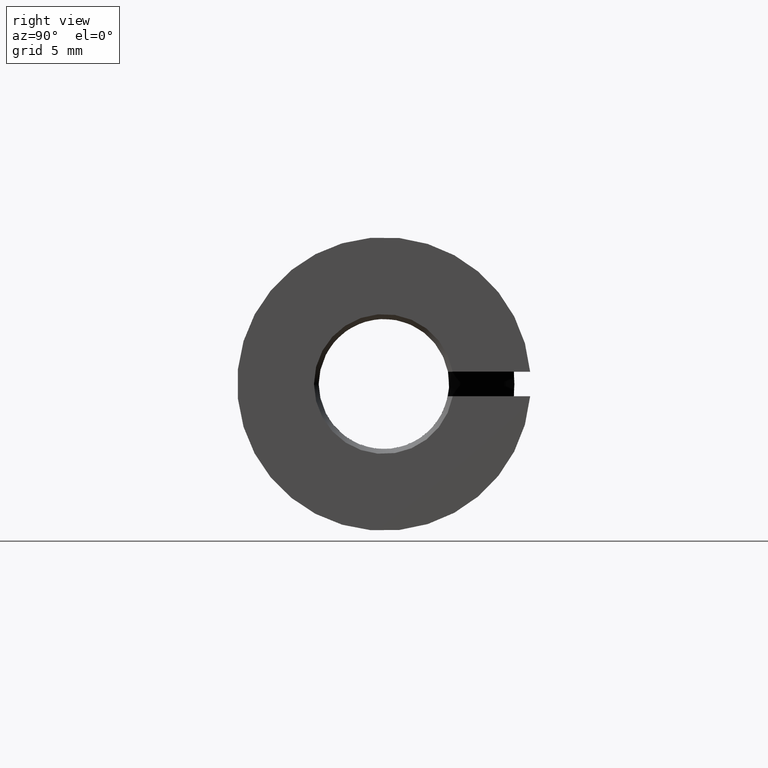
[diagram: clean part render]
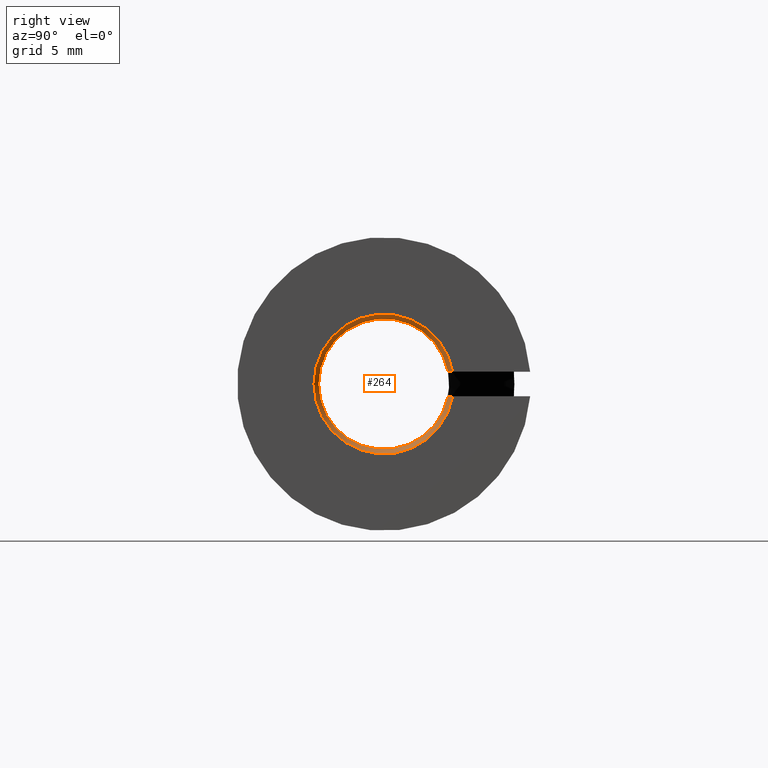
[diagram: same view with one face highlighted and labeled with its STEP entity id]
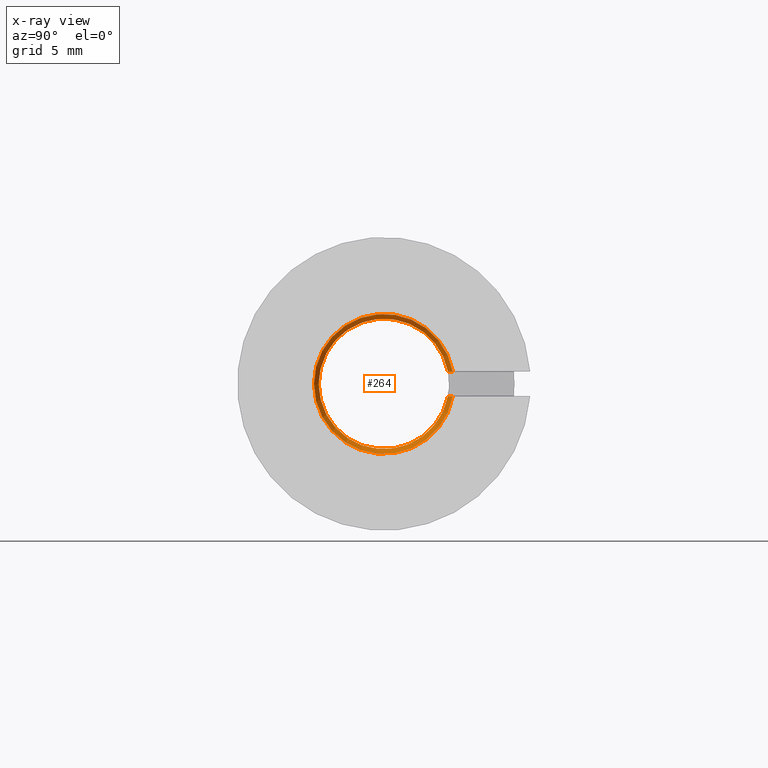
[diagram: x-ray of the same camera — body ghosted, the highlighted face saturated]
A machine part, right view. The second image highlights one B-rep face of the part: STEP entity #264.
The next image is the same camera in x-ray: the body ghosted, the highlighted face saturated — about 0% of this face is hidden behind the body in this view.
In plain terms, the highlighted conical surface has half-angle 30 deg.
Its self-contained STEP definition (entity closure, byte-faithful):
#24 = DIRECTION ( 'NONE',  ( 0.0000000000000000000, 0.0000000000000000000, 1.000000000000000000 ) ) ;
#73 = CARTESIAN_POINT ( 'NONE',  ( -0.5000000000000817100, 3.929058411375441700, 0.7500000000000000000 ) ) ;
#80 = DIRECTION ( 'NONE',  ( 0.0000000000000000000, 0.0000000000000000000, -1.000000000000000000 ) ) ;
#114 = B_SPLINE_CURVE_WITH_KNOTS ( 'NONE', 3,
 ( #320, #428, #218, #73 ),
 .UNSPECIFIED., .F., .F.,
 ( 4, 4 ),
 ( 0.004644593513985363600, 0.005224383495892881400 ),
 .UNSPECIFIED. ) ;
#200 = EDGE_CURVE ( 'NONE', #254, #603, #630, .T. ) ;
#208 = B_SPLINE_CURVE_WITH_KNOTS ( 'NONE', 3,
 ( #582, #434, #225, #636 ),
 .UNSPECIFIED., .F., .F.,
 ( 4, 4 ),
 ( 0.004644593513985363600, 0.005224383495892881400 ),
 .UNSPECIFIED. ) ;
#210 = AXIS2_PLACEMENT_3D ( 'NONE', #212, #632, #80 ) ;
#212 = CARTESIAN_POINT ( 'NONE',  ( -0.5000000000000004400, 0.0000000000000000000, 0.0000000000000000000 ) ) ;
#218 = CARTESIAN_POINT ( 'NONE',  ( -0.3333854143073288800, 4.026990247280059200, 0.7500000000000000000 ) ) ;
#220 = CARTESIAN_POINT ( 'NONE',  ( 0.0000000000000000000, 0.0000000000000000000, 0.0000000000000000000 ) ) ;
#224 = CARTESIAN_POINT ( 'NONE',  ( -0.5000000000000817100, 3.929058411375441700, -0.7500000000000000000 ) ) ;
#225 = CARTESIAN_POINT ( 'NONE',  ( -0.3333854143073288800, 4.026990247280059200, -0.7500000000000000000 ) ) ;
#254 = VERTEX_POINT ( 'NONE', #224 ) ;
#263 = EDGE_LOOP ( 'NONE', ( #499, #271, #616, #393 ) ) ;
#264 = ADVANCED_FACE ( 'NONE', ( #443 ), #490, .F. ) ;
#265 = EDGE_CURVE ( 'NONE', #291, #544, #576, .T. ) ;
#271 = ORIENTED_EDGE ( 'NONE', *, *, #433, .T. ) ;
#286 = EDGE_CURVE ( 'NONE', #544, #603, #114, .T. ) ;
#291 = VERTEX_POINT ( 'NONE', #468 ) ;
#311 = DIRECTION ( 'NONE',  ( -1.000000000000000000, -0.0000000000000000000, -0.0000000000000000000 ) ) ;
#314 = DIRECTION ( 'NONE',  ( 0.0000000000000000000, 0.0000000000000000000, 1.000000000000000000 ) ) ;
#320 = CARTESIAN_POINT ( 'NONE',  ( 0.0000000000000000000, 4.222586222931609800, 0.7500000000000000000 ) ) ;
#393 = ORIENTED_EDGE ( 'NONE', *, *, #286, .F. ) ;
#423 = DIRECTION ( 'NONE',  ( -1.000000000000000000, -0.0000000000000000000, -0.0000000000000000000 ) ) ;
#428 = CARTESIAN_POINT ( 'NONE',  ( -0.1667151565482172500, 4.124826698394885600, 0.7500000000000000000 ) ) ;
#433 = EDGE_CURVE ( 'NONE', #291, #254, #208, .T. ) ;
#434 = CARTESIAN_POINT ( 'NONE',  ( -0.1667151565482172500, 4.124826698394885600, -0.7500000000000000000 ) ) ;
#443 = FACE_OUTER_BOUND ( 'NONE', #263, .T. ) ;
#458 = AXIS2_PLACEMENT_3D ( 'NONE', #562, #311, #314 ) ;
#468 = CARTESIAN_POINT ( 'NONE',  ( 0.0000000000000000000, 4.222586222931609800, -0.7500000000000000000 ) ) ;
#490 = CONICAL_SURFACE ( 'NONE', #210, 4.000000000000000000, 0.5235987755983001500 ) ;
#499 = ORIENTED_EDGE ( 'NONE', *, *, #265, .F. ) ;
#544 = VERTEX_POINT ( 'NONE', #595 ) ;
#562 = CARTESIAN_POINT ( 'NONE',  ( -0.5000000000000004400, 0.0000000000000000000, 0.0000000000000000000 ) ) ;
#576 = CIRCLE ( 'NONE', #593, 4.288675134594814000 ) ;
#582 = CARTESIAN_POINT ( 'NONE',  ( 0.0000000000000000000, 4.222586222931609800, -0.7500000000000000000 ) ) ;
#593 = AXIS2_PLACEMENT_3D ( 'NONE', #220, #423, #24 ) ;
#595 = CARTESIAN_POINT ( 'NONE',  ( 0.0000000000000000000, 4.222586222931609800, 0.7500000000000000000 ) ) ;
#603 = VERTEX_POINT ( 'NONE', #654 ) ;
#616 = ORIENTED_EDGE ( 'NONE', *, *, #200, .T. ) ;
#630 = CIRCLE ( 'NONE', #458, 4.000000000000000000 ) ;
#632 = DIRECTION ( 'NONE',  ( 1.000000000000000000, 0.0000000000000000000, 0.0000000000000000000 ) ) ;
#636 = CARTESIAN_POINT ( 'NONE',  ( -0.5000000000000817100, 3.929058411375441700, -0.7500000000000000000 ) ) ;
#654 = CARTESIAN_POINT ( 'NONE',  ( -0.5000000000000817100, 3.929058411375441700, 0.7500000000000000000 ) ) ;